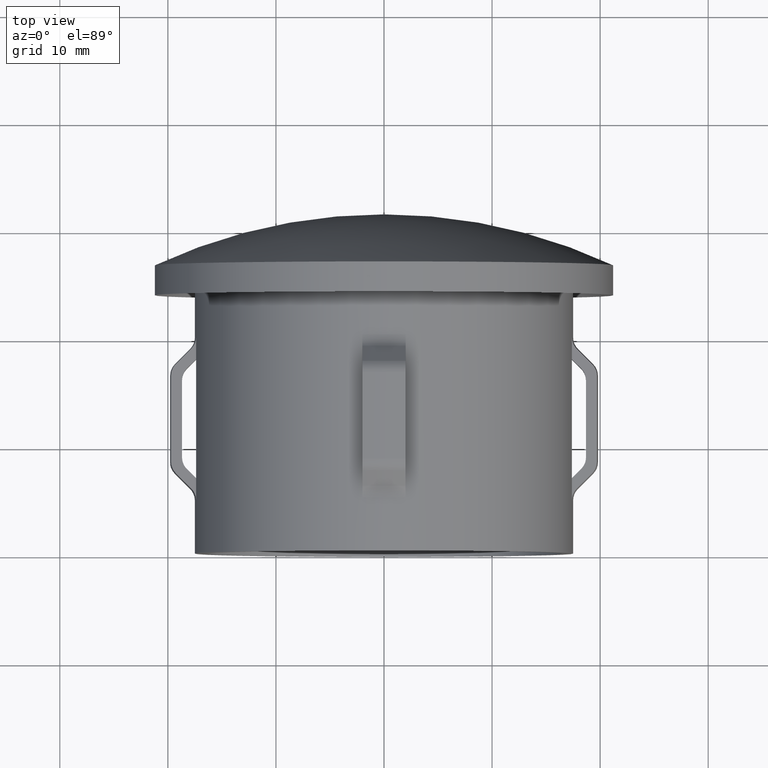
[diagram: clean part render]
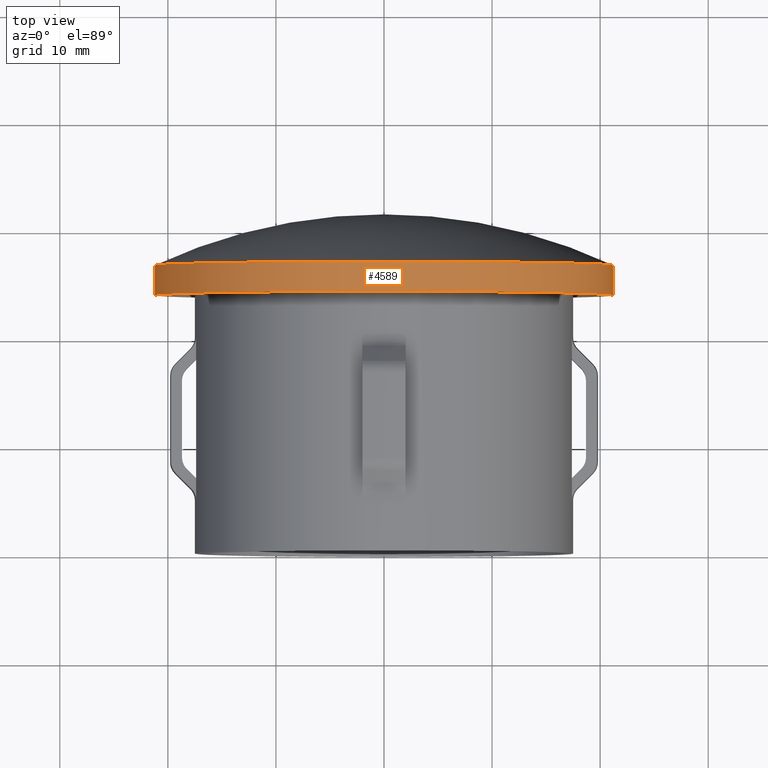
[diagram: same view with one face highlighted and labeled with its STEP entity id]
A machine part, top view. The second image highlights one B-rep face of the part: STEP entity #4589.
In plain terms, the highlighted cylindrical surface (partial cylindrical patch) has radius 21.2 mm, axis along (-0, -1, -0).
Its self-contained STEP definition (entity closure, byte-faithful):
#14 = VERTEX_POINT ( 'NONE', #12930 ) ;
#184 = DIRECTION ( 'NONE',  ( 1.000000000000000000, -2.945756845998349800E-015, 0.0000000000000000000 ) ) ;
#194 = DIRECTION ( 'NONE',  ( 1.000000000000000000, -2.945756845998350200E-015, 0.0000000000000000000 ) ) ;
#705 = DIRECTION ( 'NONE',  ( -2.904862207577519400E-015, -1.000000000000000000, -0.0000000000000000000 ) ) ;
#1758 = VECTOR ( 'NONE', #11322, 1000.000000000000000 ) ;
#1859 = CARTESIAN_POINT ( 'NONE',  ( -21.20000000000001400, 28.90000000000005900, 2.596251214192390700E-015 ) ) ;
#3676 = LINE ( 'NONE', #1859, #4359 ) ;
#3866 = CARTESIAN_POINT ( 'NONE',  ( -1.450517460529105200E-014, 23.90658772472808400, 0.0000000000000000000 ) ) ;
#4215 = CARTESIAN_POINT ( 'NONE',  ( -21.19999999999990000, 23.90658772472814800, 2.596251214192391900E-015 ) ) ;
#4359 = VECTOR ( 'NONE', #705, 1000.000000000000000 ) ;
#4515 = CYLINDRICAL_SURFACE ( 'NONE', #12664, 21.20000000000001400 ) ;
#4589 = ADVANCED_FACE ( 'NONE', ( #6404 ), #4515, .T. ) ;
#4826 = EDGE_CURVE ( 'NONE', #14, #9266, #9162, .T. ) ;
#5602 = DIRECTION ( 'NONE',  ( -2.904862207577519400E-015, -1.000000000000000000, -0.0000000000000000000 ) ) ;
#5631 = ORIENTED_EDGE ( 'NONE', *, *, #4826, .F. ) ;
#5727 = CIRCLE ( 'NONE', #6166, 21.20000000000001700 ) ;
#6166 = AXIS2_PLACEMENT_3D ( 'NONE', #3866, #9346, #13822 ) ;
#6273 = CARTESIAN_POINT ( 'NONE',  ( -21.19999999999988600, 26.68310943387181300, 2.596251214192390300E-015 ) ) ;
#6404 = FACE_OUTER_BOUND ( 'NONE', #8244, .T. ) ;
#6717 = DIRECTION ( 'NONE',  ( -2.904862207577519400E-015, -1.000000000000000000, -0.0000000000000000000 ) ) ;
#6906 = VERTEX_POINT ( 'NONE', #6273 ) ;
#7064 = ORIENTED_EDGE ( 'NONE', *, *, #11387, .T. ) ;
#7192 = ORIENTED_EDGE ( 'NONE', *, *, #7726, .T. ) ;
#7726 = EDGE_CURVE ( 'NONE', #14, #6906, #8338, .T. ) ;
#7988 = AXIS2_PLACEMENT_3D ( 'NONE', #13397, #6717, #194 ) ;
#8244 = EDGE_LOOP ( 'NONE', ( #7192, #7064, #12303, #5631 ) ) ;
#8338 = CIRCLE ( 'NONE', #7988, 21.20000000000001000 ) ;
#9162 = LINE ( 'NONE', #10307, #1758 ) ;
#9266 = VERTEX_POINT ( 'NONE', #9813 ) ;
#9346 = DIRECTION ( 'NONE',  ( -2.904862207577519400E-015, -1.000000000000000000, -0.0000000000000000000 ) ) ;
#9813 = CARTESIAN_POINT ( 'NONE',  ( 21.20000000000001000, 23.90658772472802000, 0.0000000000000000000 ) ) ;
#10307 = CARTESIAN_POINT ( 'NONE',  ( 21.20000000000001400, 28.89999999999993100, 0.0000000000000000000 ) ) ;
#11322 = DIRECTION ( 'NONE',  ( -2.904862207577519400E-015, -1.000000000000000000, -0.0000000000000000000 ) ) ;
#11387 = EDGE_CURVE ( 'NONE', #6906, #13172, #3676, .T. ) ;
#11983 = EDGE_CURVE ( 'NONE', #9266, #13172, #5727, .T. ) ;
#12225 = CARTESIAN_POINT ( 'NONE',  ( 0.0000000000000000000, 28.89999999999999500, 0.0000000000000000000 ) ) ;
#12303 = ORIENTED_EDGE ( 'NONE', *, *, #11983, .F. ) ;
#12664 = AXIS2_PLACEMENT_3D ( 'NONE', #12225, #5602, #184 ) ;
#12930 = CARTESIAN_POINT ( 'NONE',  ( 21.20000000000000300, 26.68310943387169200, 0.0000000000000000000 ) ) ;
#13172 = VERTEX_POINT ( 'NONE', #4215 ) ;
#13397 = CARTESIAN_POINT ( 'NONE',  ( -6.439761623881060800E-015, 26.68310943387175600, 0.0000000000000000000 ) ) ;
#13822 = DIRECTION ( 'NONE',  ( 1.000000000000000000, -2.945756845998349400E-015, 0.0000000000000000000 ) ) ;